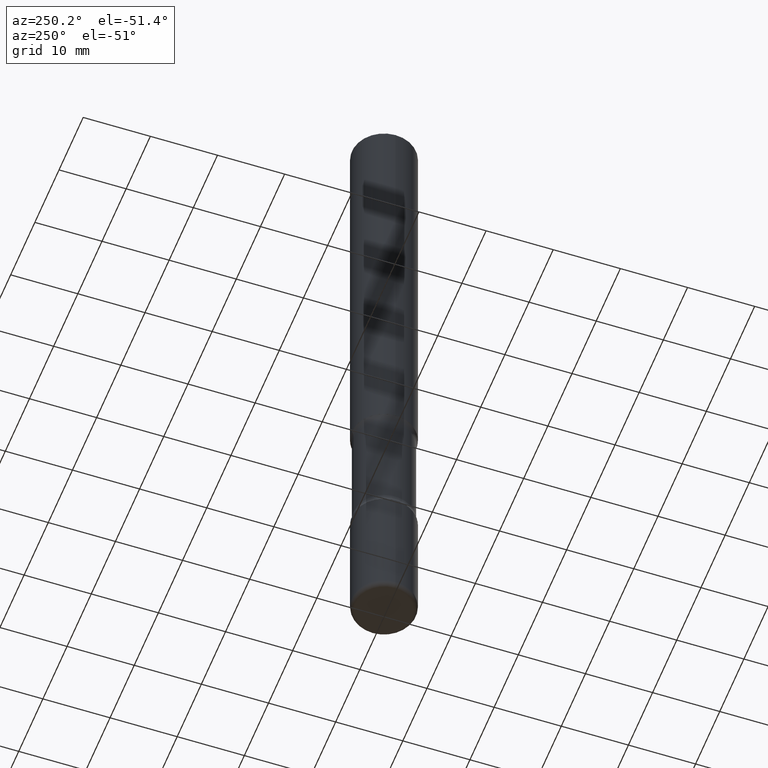
[diagram: clean part render]
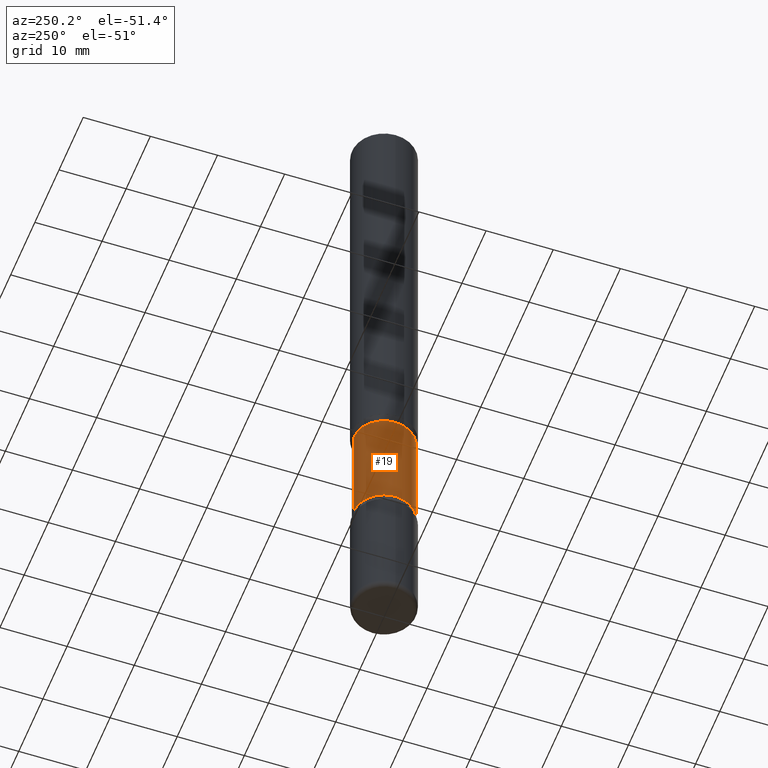
[diagram: same view with one face highlighted and labeled with its STEP entity id]
A machine part, auxiliary view. The second image highlights one B-rep face of the part: STEP entity #19.
In plain terms, the highlighted cylindrical surface (edge-blend (fillet) strip) has radius 4.5244 mm, axis along (0, -0, -1).
Its self-contained STEP definition (entity closure, byte-faithful):
#9 = ORIENTED_EDGE ( 'NONE', *, *, #119, .F. ) ;
#19 = ADVANCED_FACE ( 'NONE', ( #539 ), #287, .T. ) ;
#28 = VERTEX_POINT ( 'NONE', #279 ) ;
#31 = ORIENTED_EDGE ( 'NONE', *, *, #280, .T. ) ;
#50 = CARTESIAN_POINT ( 'NONE',  ( 7.826246762236988201E-29, -1.118918372292999451E-14, -3.202504112020091664 ) ) ;
#59 = CARTESIAN_POINT ( 'NONE',  ( 6.150289227201164007E-29, -9.008429421428009851E-15, -2.547495887979908780 ) ) ;
#61 = DIRECTION ( 'NONE',  ( 2.558681667686983511E-29, -3.329354077496592524E-15, -1.000000000000000000 ) ) ;
#84 = EDGE_LOOP ( 'NONE', ( #428, #31, #285, #9 ) ) ;
#91 = DIRECTION ( 'NONE',  ( 2.558681667686983511E-29, -3.329354077496592524E-15, -1.000000000000000000 ) ) ;
#96 = CARTESIAN_POINT ( 'NONE',  ( 1.243840226962964471E-15, 0.1781249999999861278, -4.000000000000000888 ) ) ;
#98 = CARTESIAN_POINT ( 'NONE',  ( 1.243840226962943961E-15, 0.1781249999999887368, -3.202504112020092553 ) ) ;
#103 = VERTEX_POINT ( 'NONE', #404 ) ;
#110 = AXIS2_PLACEMENT_3D ( 'NONE', #449, #61, #334 ) ;
#119 = EDGE_CURVE ( 'NONE', #28, #377, #248, .T. ) ;
#136 = DIRECTION ( 'NONE',  ( 2.558681667686983511E-29, -3.329354077496592524E-15, -1.000000000000000000 ) ) ;
#140 = LINE ( 'NONE', #96, #376 ) ;
#146 = DIRECTION ( 'NONE',  ( 2.558681667686983511E-29, -3.329354077496592524E-15, -1.000000000000000000 ) ) ;
#150 = DIRECTION ( 'NONE',  ( 6.982962677686265133E-15, 1.000000000000000000, -3.067338098149349483E-15 ) ) ;
#153 = DIRECTION ( 'NONE',  ( 2.558681667686983511E-29, -3.329354077496592524E-15, -1.000000000000000000 ) ) ;
#187 = DIRECTION ( 'NONE',  ( 6.982962677686266711E-15, 1.000000000000000000, -3.067338098149349089E-15 ) ) ;
#189 = CIRCLE ( 'NONE', #487, 0.1781249999999999500 ) ;
#237 = VECTOR ( 'NONE', #136, 39.37007874015748143 ) ;
#248 = CIRCLE ( 'NONE', #360, 0.1781249999999999223 ) ;
#262 = VERTEX_POINT ( 'NONE', #403 ) ;
#279 = CARTESIAN_POINT ( 'NONE',  ( -1.254184790217529307E-15, -0.1781250000000111355, -3.202504112020091220 ) ) ;
#280 = EDGE_CURVE ( 'NONE', #262, #103, #189, .T. ) ;
#285 = ORIENTED_EDGE ( 'NONE', *, *, #347, .T. ) ;
#287 = CYLINDRICAL_SURFACE ( 'NONE', #110, 0.1781249999999999500 ) ;
#330 = EDGE_CURVE ( 'NONE', #262, #28, #359, .T. ) ;
#334 = DIRECTION ( 'NONE',  ( 6.982962677686266711E-15, 1.000000000000000000, -3.067338098149349089E-15 ) ) ;
#347 = EDGE_CURVE ( 'NONE', #103, #377, #140, .T. ) ;
#359 = LINE ( 'NONE', #522, #237 ) ;
#360 = AXIS2_PLACEMENT_3D ( 'NONE', #50, #146, #150 ) ;
#376 = VECTOR ( 'NONE', #91, 39.37007874015748143 ) ;
#377 = VERTEX_POINT ( 'NONE', #98 ) ;
#403 = CARTESIAN_POINT ( 'NONE',  ( -1.254184790217547253E-15, -0.1781250000000089706, -2.547495887979908336 ) ) ;
#404 = CARTESIAN_POINT ( 'NONE',  ( 1.243840226962927197E-15, 0.1781249999999909572, -2.547495887979909224 ) ) ;
#428 = ORIENTED_EDGE ( 'NONE', *, *, #330, .F. ) ;
#449 = CARTESIAN_POINT ( 'NONE',  ( 9.866784870866931853E-29, -1.384432990936266734E-14, -4.000000000000000000 ) ) ;
#487 = AXIS2_PLACEMENT_3D ( 'NONE', #59, #153, #187 ) ;
#522 = CARTESIAN_POINT ( 'NONE',  ( -1.222026205852954821E-15, -0.1781250000000138001, -3.999999999999999556 ) ) ;
#539 = FACE_OUTER_BOUND ( 'NONE', #84, .T. ) ;